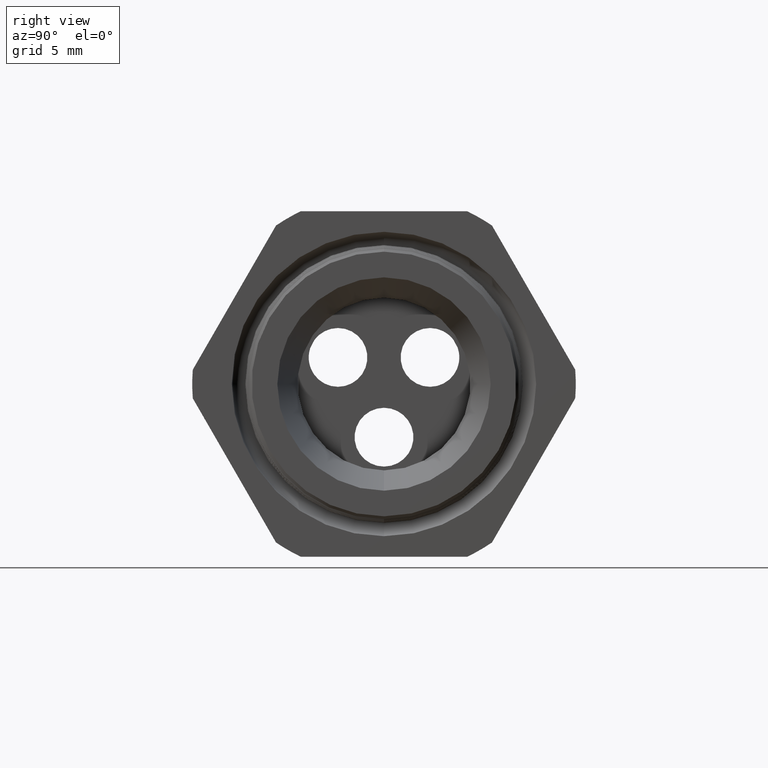
[diagram: clean part render]
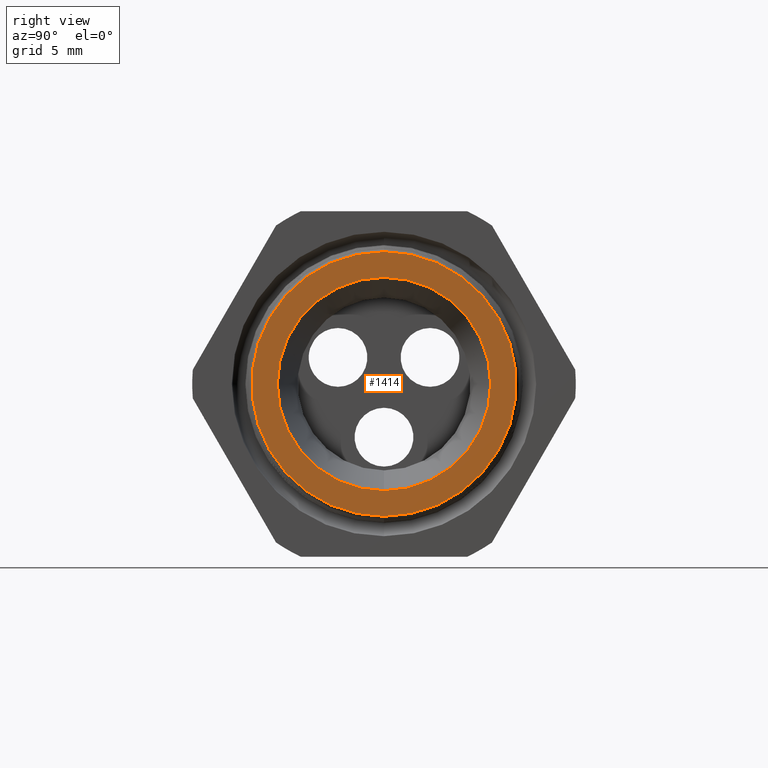
[diagram: same view with one face highlighted and labeled with its STEP entity id]
A machine part, right view. The second image highlights one B-rep face of the part: STEP entity #1414.
In plain terms, the highlighted planar face has unit normal (1, 0, 0).
Its self-contained STEP definition (entity closure, byte-faithful):
#36 = VERTEX_POINT ( 'NONE', #1661 ) ;
#62 = VERTEX_POINT ( 'NONE', #1733 ) ;
#67 = EDGE_CURVE ( 'NONE', #36, #62, #1727, .T. ) ;
#107 = EDGE_CURVE ( 'NONE', #108, #109, #1778, .T. ) ;
#108 = VERTEX_POINT ( 'NONE', #1773 ) ;
#109 = VERTEX_POINT ( 'NONE', #1772 ) ;
#1413 = EDGE_CURVE ( 'NONE', #62, #36, #4215, .T. ) ;
#1414 = ADVANCED_FACE ( 'NONE', ( #4210, #4209 ), #4208, .T. ) ;
#1415 = EDGE_LOOP ( 'NONE', ( #1416, #1418 ) ) ;
#1416 = ORIENTED_EDGE ( 'NONE', *, *, #1417, .T. ) ;
#1417 = EDGE_CURVE ( 'NONE', #109, #108, #4203, .T. ) ;
#1418 = ORIENTED_EDGE ( 'NONE', *, *, #107, .T. ) ;
#1419 = EDGE_LOOP ( 'NONE', ( #1420, #1421 ) ) ;
#1420 = ORIENTED_EDGE ( 'NONE', *, *, #1413, .F. ) ;
#1421 = ORIENTED_EDGE ( 'NONE', *, *, #67, .F. ) ;
#1661 = CARTESIAN_POINT ( 'NONE',  ( 0.03999999999999997300, 3.554451165405293600E-017, 0.2902429637573903900 ) ) ;
#1723 = DIRECTION ( 'NONE',  ( 0.0000000000000000000, 0.0000000000000000000, -1.000000000000000000 ) ) ;
#1724 = DIRECTION ( 'NONE',  ( 1.000000000000000000, 0.0000000000000000000, 0.0000000000000000000 ) ) ;
#1725 = CARTESIAN_POINT ( 'NONE',  ( 0.03999999999999997300, 0.0000000000000000000, 0.0000000000000000000 ) ) ;
#1726 = AXIS2_PLACEMENT_3D ( 'NONE', #1725, #1724, #1723 ) ;
#1727 = CIRCLE ( 'NONE', #1726, 0.2902429637573903900 ) ;
#1733 = CARTESIAN_POINT ( 'NONE',  ( 0.03999999999999997300, 0.0000000000000000000, -0.2902429637573903900 ) ) ;
#1772 = CARTESIAN_POINT ( 'NONE',  ( 0.03999999999999997300, 0.0000000000000000000, 0.3599705430289613700 ) ) ;
#1773 = CARTESIAN_POINT ( 'NONE',  ( 0.03999999999999997300, 4.454343898837497100E-017, -0.3599705430289613700 ) ) ;
#1774 = DIRECTION ( 'NONE',  ( 0.0000000000000000000, 0.0000000000000000000, -1.000000000000000000 ) ) ;
#1775 = DIRECTION ( 'NONE',  ( 1.000000000000000000, 0.0000000000000000000, 0.0000000000000000000 ) ) ;
#1776 = CARTESIAN_POINT ( 'NONE',  ( 0.03999999999999997300, 0.0000000000000000000, 0.0000000000000000000 ) ) ;
#1777 = AXIS2_PLACEMENT_3D ( 'NONE', #1776, #1775, #1774 ) ;
#1778 = CIRCLE ( 'NONE', #1777, 0.3599705430289613700 ) ;
#4199 = DIRECTION ( 'NONE',  ( 0.0000000000000000000, 0.0000000000000000000, -1.000000000000000000 ) ) ;
#4200 = DIRECTION ( 'NONE',  ( 1.000000000000000000, 0.0000000000000000000, 0.0000000000000000000 ) ) ;
#4201 = CARTESIAN_POINT ( 'NONE',  ( 0.03999999999999997300, 0.0000000000000000000, 0.0000000000000000000 ) ) ;
#4202 = AXIS2_PLACEMENT_3D ( 'NONE', #4201, #4200, #4199 ) ;
#4203 = CIRCLE ( 'NONE', #4202, 0.3599705430289613700 ) ;
#4204 = DIRECTION ( 'NONE',  ( 0.0000000000000000000, 0.0000000000000000000, -1.000000000000000000 ) ) ;
#4205 = DIRECTION ( 'NONE',  ( 1.000000000000000000, 0.0000000000000000000, 0.0000000000000000000 ) ) ;
#4206 = CARTESIAN_POINT ( 'NONE',  ( 0.03999999999999997300, 0.2902429637573903900, 0.0000000000000000000 ) ) ;
#4207 = AXIS2_PLACEMENT_3D ( 'NONE', #4206, #4205, #4204 ) ;
#4208 = PLANE ( 'NONE',  #4207 ) ;
#4209 = FACE_BOUND ( 'NONE', #1419, .T. ) ;
#4210 = FACE_OUTER_BOUND ( 'NONE', #1415, .T. ) ;
#4211 = DIRECTION ( 'NONE',  ( 0.0000000000000000000, 0.0000000000000000000, -1.000000000000000000 ) ) ;
#4212 = DIRECTION ( 'NONE',  ( 1.000000000000000000, 0.0000000000000000000, 0.0000000000000000000 ) ) ;
#4213 = CARTESIAN_POINT ( 'NONE',  ( 0.03999999999999997300, 0.0000000000000000000, 0.0000000000000000000 ) ) ;
#4214 = AXIS2_PLACEMENT_3D ( 'NONE', #4213, #4212, #4211 ) ;
#4215 = CIRCLE ( 'NONE', #4214, 0.2902429637573903900 ) ;